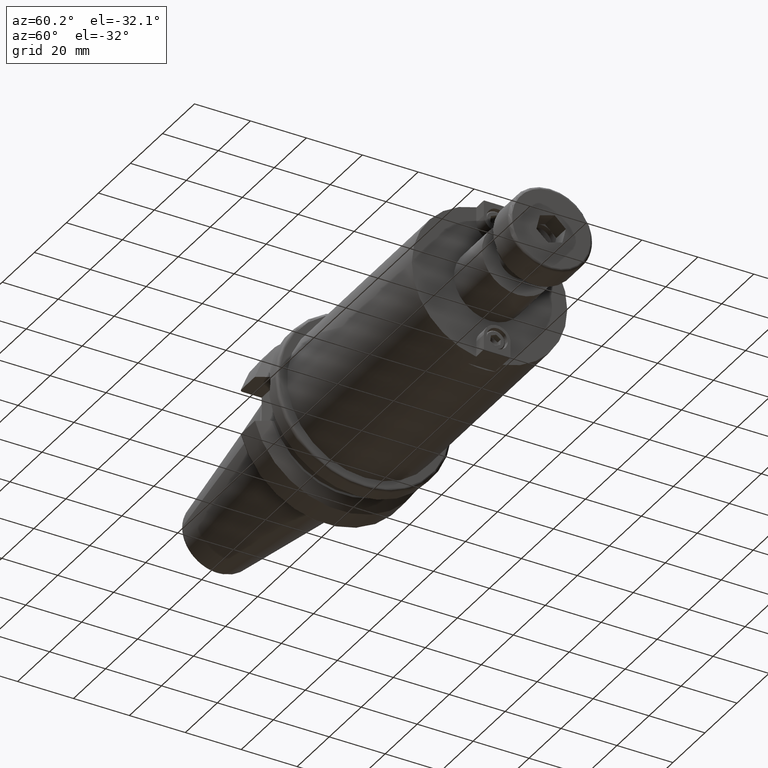
[diagram: clean part render]
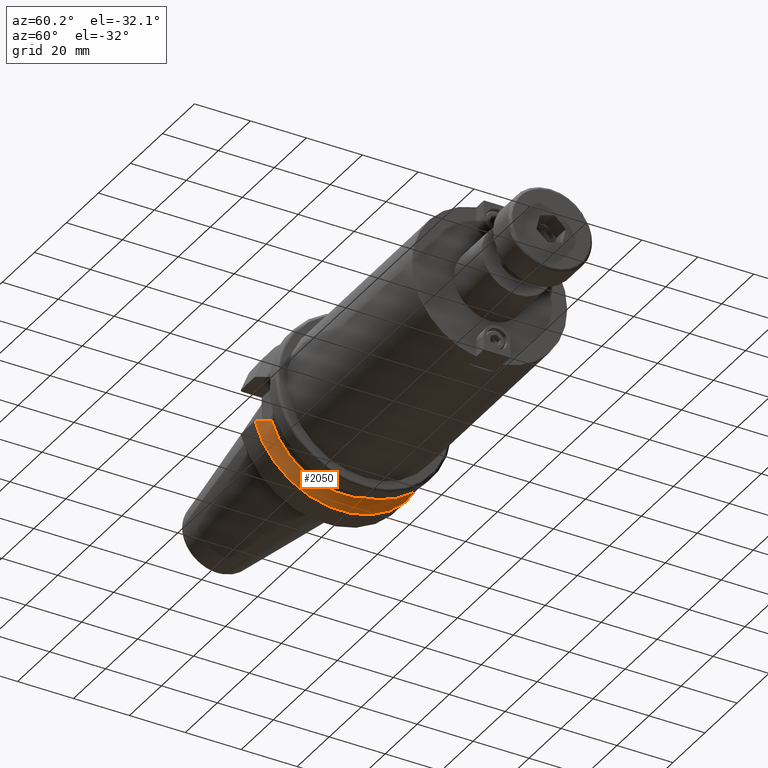
[diagram: same view with one face highlighted and labeled with its STEP entity id]
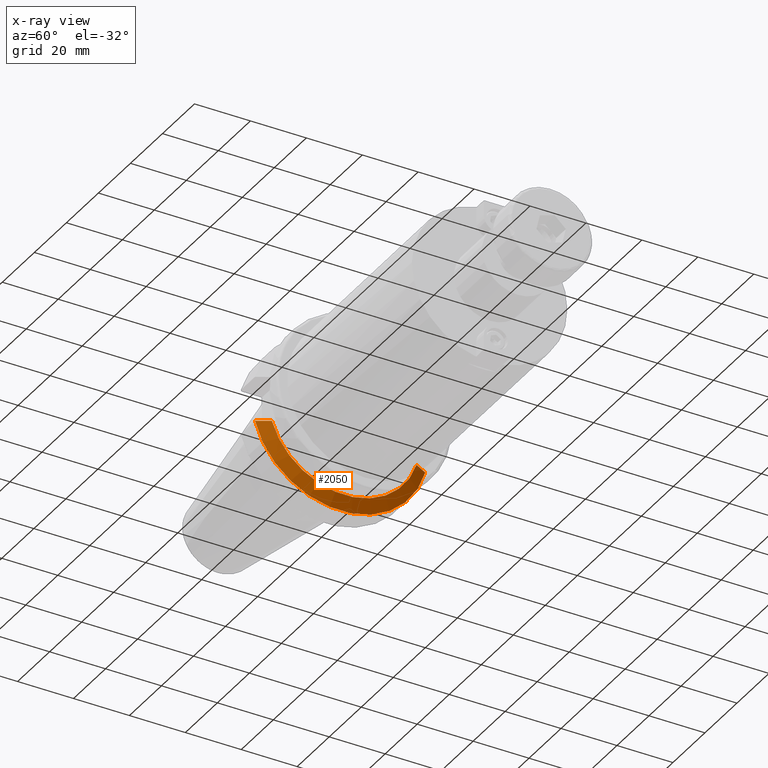
[diagram: x-ray of the same camera — body ghosted, the highlighted face saturated]
A machine part, auxiliary view. The second image highlights one B-rep face of the part: STEP entity #2050.
The next image is the same camera in x-ray: the body ghosted, the highlighted face saturated — about 1% of this face is hidden behind the body in this view.
In plain terms, the highlighted conical surface has half-angle 60.125 deg.
Its self-contained STEP definition (entity closure, byte-faithful):
#65=(
BOUNDED_CURVE()
B_SPLINE_CURVE(2,(#3597,#3598,#3599),.UNSPECIFIED.,.F.,.F.)
B_SPLINE_CURVE_WITH_KNOTS((3,3),(0.,0.52358279083281),.UNSPECIFIED.)
CURVE()
GEOMETRIC_REPRESENTATION_ITEM()
RATIONAL_B_SPLINE_CURVE((1.,1.00307360097546,1.))
REPRESENTATION_ITEM('')
);
#66=(
BOUNDED_CURVE()
B_SPLINE_CURVE(2,(#3654,#3655,#3656),.UNSPECIFIED.,.F.,.F.)
B_SPLINE_CURVE_WITH_KNOTS((3,3),(0.,0.52358279083281),.UNSPECIFIED.)
CURVE()
GEOMETRIC_REPRESENTATION_ITEM()
RATIONAL_B_SPLINE_CURVE((1.,1.00307360097546,1.))
REPRESENTATION_ITEM('')
);
#222=CIRCLE('',#2335,27.0940716549138);
#223=CIRCLE('',#2337,31.5000000000001);
#300=CONICAL_SURFACE('',#2336,29.2970358274569,1.0493792127616);
#358=FACE_OUTER_BOUND('',#493,.T.);
#493=EDGE_LOOP('',(#1597,#1598,#1599,#1600));
#938=VERTEX_POINT('',#3594);
#939=VERTEX_POINT('',#3596);
#948=VERTEX_POINT('',#3648);
#949=VERTEX_POINT('',#3652);
#1170=EDGE_CURVE('',#939,#938,#65,.T.);
#1186=EDGE_CURVE('',#939,#948,#222,.T.);
#1188=EDGE_CURVE('',#938,#949,#223,.T.);
#1189=EDGE_CURVE('',#949,#948,#66,.T.);
#1597=ORIENTED_EDGE('',*,*,#1170,.T.);
#1598=ORIENTED_EDGE('',*,*,#1188,.T.);
#1599=ORIENTED_EDGE('',*,*,#1189,.T.);
#1600=ORIENTED_EDGE('',*,*,#1186,.F.);
#2050=ADVANCED_FACE('',(#358),#300,.T.);
#2335=AXIS2_PLACEMENT_3D('',#3649,#2767,#2768);
#2336=AXIS2_PLACEMENT_3D('',#3651,#2770,#2771);
#2337=AXIS2_PLACEMENT_3D('',#3653,#2772,#2773);
#2767=DIRECTION('center_axis',(1.,0.,0.));
#2768=DIRECTION('ref_axis',(0.,0.,-1.));
#2770=DIRECTION('center_axis',(-1.,0.,0.));
#2771=DIRECTION('ref_axis',(0.,1.,0.));
#2772=DIRECTION('center_axis',(1.,0.,0.));
#2773=DIRECTION('ref_axis',(0.,0.,-1.));
#3594=CARTESIAN_POINT('',(11.5690363073382,-30.4540227227866,-8.05));
#3596=CARTESIAN_POINT('',(14.1,-25.8705666509569,-8.05));
#3597=CARTESIAN_POINT('Ctrl Pts',(14.1,-25.8705666509569,-8.05));
#3598=CARTESIAN_POINT('Ctrl Pts',(12.9374976962938,-27.989970265181,-8.05));
#3599=CARTESIAN_POINT('Ctrl Pts',(11.5690363073382,-30.4540227227866,-8.05));
#3648=CARTESIAN_POINT('',(14.1,25.8705666509569,-8.05));
#3649=CARTESIAN_POINT('Origin',(14.1,0.,0.));
#3651=CARTESIAN_POINT('Origin',(12.8345181536691,0.,0.));
#3652=CARTESIAN_POINT('',(11.5690363073382,30.4540227227866,-8.05));
#3653=CARTESIAN_POINT('Origin',(11.5690363073382,0.,0.));
#3654=CARTESIAN_POINT('Ctrl Pts',(11.5690363073382,30.4540227227866,-8.05));
#3655=CARTESIAN_POINT('Ctrl Pts',(12.9374976962938,27.989970265181,-8.05));
#3656=CARTESIAN_POINT('Ctrl Pts',(14.1,25.8705666509569,-8.05));